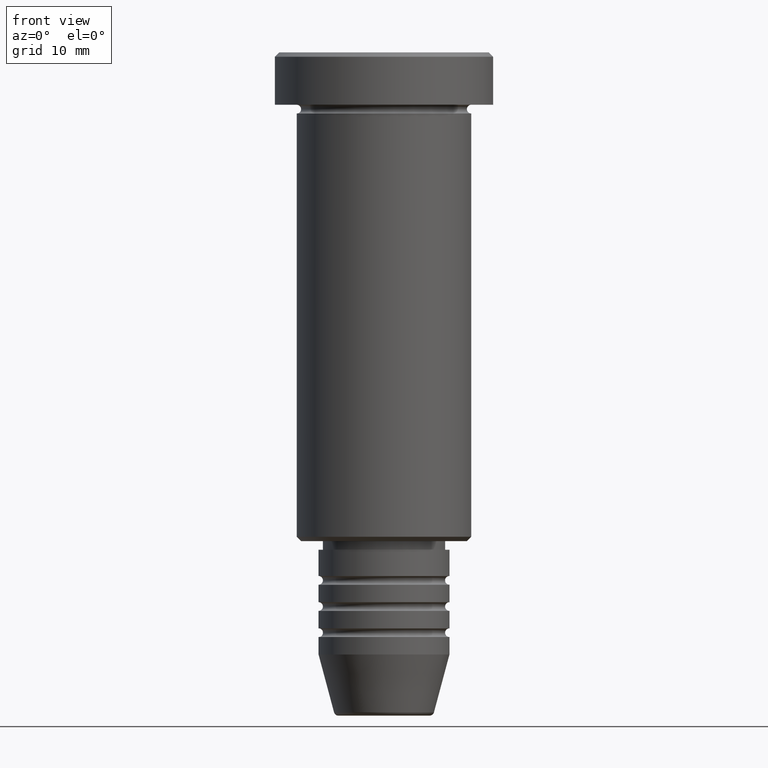
[diagram: clean part render]
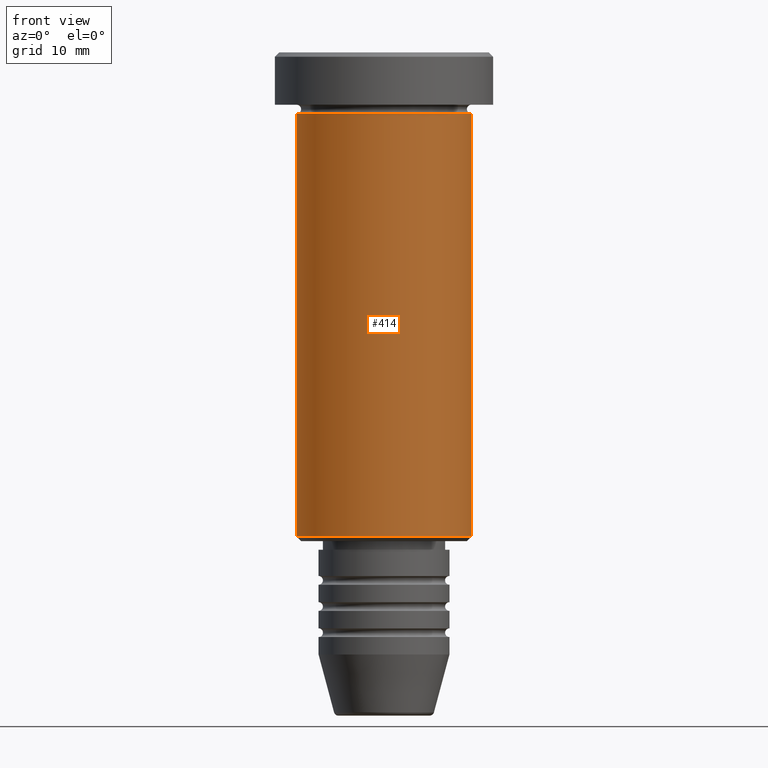
[diagram: same view with one face highlighted and labeled with its STEP entity id]
A machine part, front view. The second image highlights one B-rep face of the part: STEP entity #414.
In plain terms, the highlighted cylindrical surface (partial cylindrical patch) has radius 10 mm, axis along (-0, -0, 1).
Its self-contained STEP definition (entity closure, byte-faithful):
#2 = CARTESIAN_POINT ( 'NONE',  ( 0.000000000000000000, 0.000000000000000000, 0.000000000000000000 ) ) ;
#46 = ORIENTED_EDGE ( 'NONE', *, *, #859, .T. ) ;
#75 = CIRCLE ( 'NONE', #672, 10.00000000000000000 ) ;
#77 = FACE_OUTER_BOUND ( 'NONE', #681, .T. ) ;
#84 = DIRECTION ( 'NONE',  ( -0.000000000000000000, -0.000000000000000000, 1.000000000000000000 ) ) ;
#98 = VECTOR ( 'NONE', #435, 1000.000000000000000 ) ;
#214 = DIRECTION ( 'NONE',  ( -0.000000000000000000, -0.000000000000000000, 1.000000000000000000 ) ) ;
#256 = VECTOR ( 'NONE', #214, 1000.000000000000000 ) ;
#261 = CARTESIAN_POINT ( 'NONE',  ( 10.00000000000000000, 0.000000000000000000, -6.999999999999996447 ) ) ;
#275 = LINE ( 'NONE', #355, #98 ) ;
#331 = EDGE_CURVE ( 'NONE', #744, #790, #75, .T. ) ;
#333 = ORIENTED_EDGE ( 'NONE', *, *, #341, .F. ) ;
#341 = EDGE_CURVE ( 'NONE', #744, #809, #275, .T. ) ;
#346 = DIRECTION ( 'NONE',  ( 1.000000000000000000, 0.000000000000000000, 0.000000000000000000 ) ) ;
#355 = CARTESIAN_POINT ( 'NONE',  ( -10.00000000000000000, 1.224646799147353256E-15, 0.000000000000000000 ) ) ;
#414 = ADVANCED_FACE ( 'NONE', ( #77 ), #890, .T. ) ;
#431 = DIRECTION ( 'NONE',  ( -0.000000000000000000, -0.000000000000000000, 1.000000000000000000 ) ) ;
#435 = DIRECTION ( 'NONE',  ( -0.000000000000000000, -0.000000000000000000, 1.000000000000000000 ) ) ;
#443 = DIRECTION ( 'NONE',  ( -0.000000000000000000, -0.000000000000000000, 1.000000000000000000 ) ) ;
#587 = CARTESIAN_POINT ( 'NONE',  ( 10.00000000000000000, 0.000000000000000000, 0.000000000000000000 ) ) ;
#672 = AXIS2_PLACEMENT_3D ( 'NONE', #816, #431, #720 ) ;
#676 = AXIS2_PLACEMENT_3D ( 'NONE', #808, #84, #346 ) ;
#681 = EDGE_LOOP ( 'NONE', ( #333, #698, #46, #891 ) ) ;
#698 = ORIENTED_EDGE ( 'NONE', *, *, #331, .T. ) ;
#720 = DIRECTION ( 'NONE',  ( -1.000000000000000000, 0.000000000000000000, 0.000000000000000000 ) ) ;
#744 = VERTEX_POINT ( 'NONE', #927 ) ;
#753 = AXIS2_PLACEMENT_3D ( 'NONE', #2, #443, #1000 ) ;
#766 = EDGE_CURVE ( 'NONE', #809, #1183, #1076, .T. ) ;
#769 = CARTESIAN_POINT ( 'NONE',  ( 10.00000000000000000, 0.000000000000000000, -55.50000000000000711 ) ) ;
#790 = VERTEX_POINT ( 'NONE', #769 ) ;
#808 = CARTESIAN_POINT ( 'NONE',  ( 0.000000000000000000, 0.000000000000000000, -6.999999999999996447 ) ) ;
#809 = VERTEX_POINT ( 'NONE', #1021 ) ;
#816 = CARTESIAN_POINT ( 'NONE',  ( 0.000000000000000000, 0.000000000000000000, -55.50000000000000711 ) ) ;
#859 = EDGE_CURVE ( 'NONE', #790, #1183, #1027, .T. ) ;
#890 = CYLINDRICAL_SURFACE ( 'NONE', #753, 10.00000000000000000 ) ;
#891 = ORIENTED_EDGE ( 'NONE', *, *, #766, .F. ) ;
#927 = CARTESIAN_POINT ( 'NONE',  ( -10.00000000000000000, 1.224646799147353256E-15, -55.50000000000000711 ) ) ;
#1000 = DIRECTION ( 'NONE',  ( 1.000000000000000000, 0.000000000000000000, 0.000000000000000000 ) ) ;
#1021 = CARTESIAN_POINT ( 'NONE',  ( -10.00000000000000000, 1.224646799147353256E-15, -6.999999999999996447 ) ) ;
#1027 = LINE ( 'NONE', #587, #256 ) ;
#1076 = CIRCLE ( 'NONE', #676, 10.00000000000000000 ) ;
#1183 = VERTEX_POINT ( 'NONE', #261 ) ;